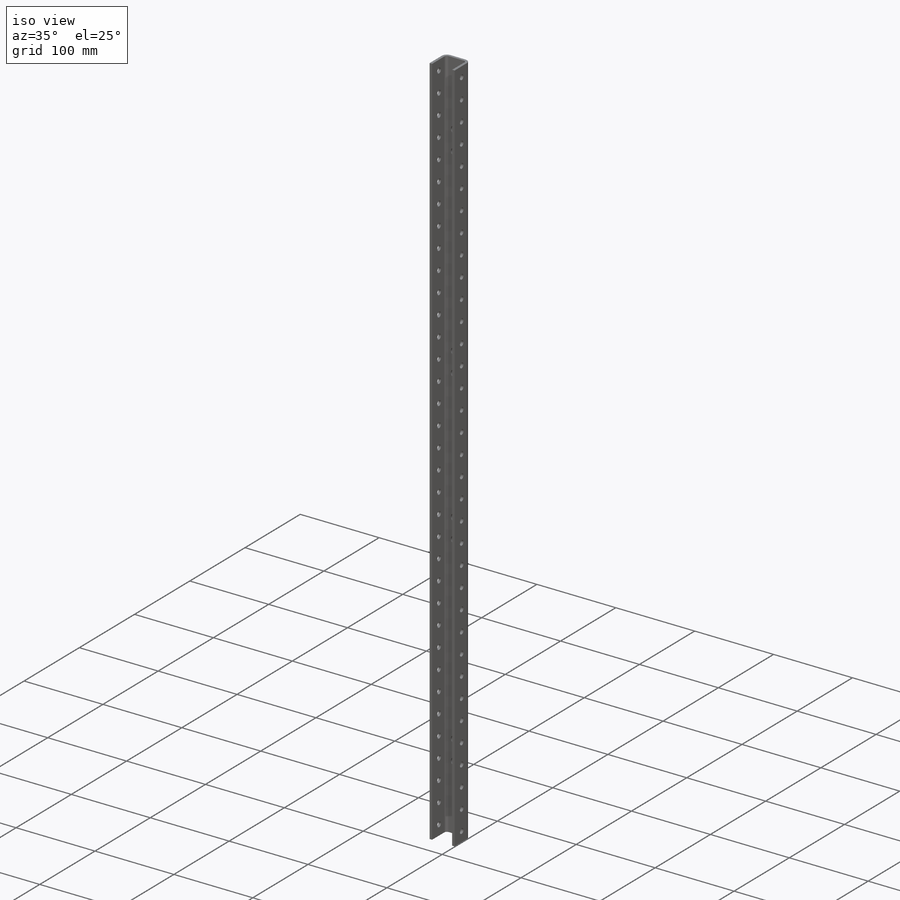
[diagram: iso view]
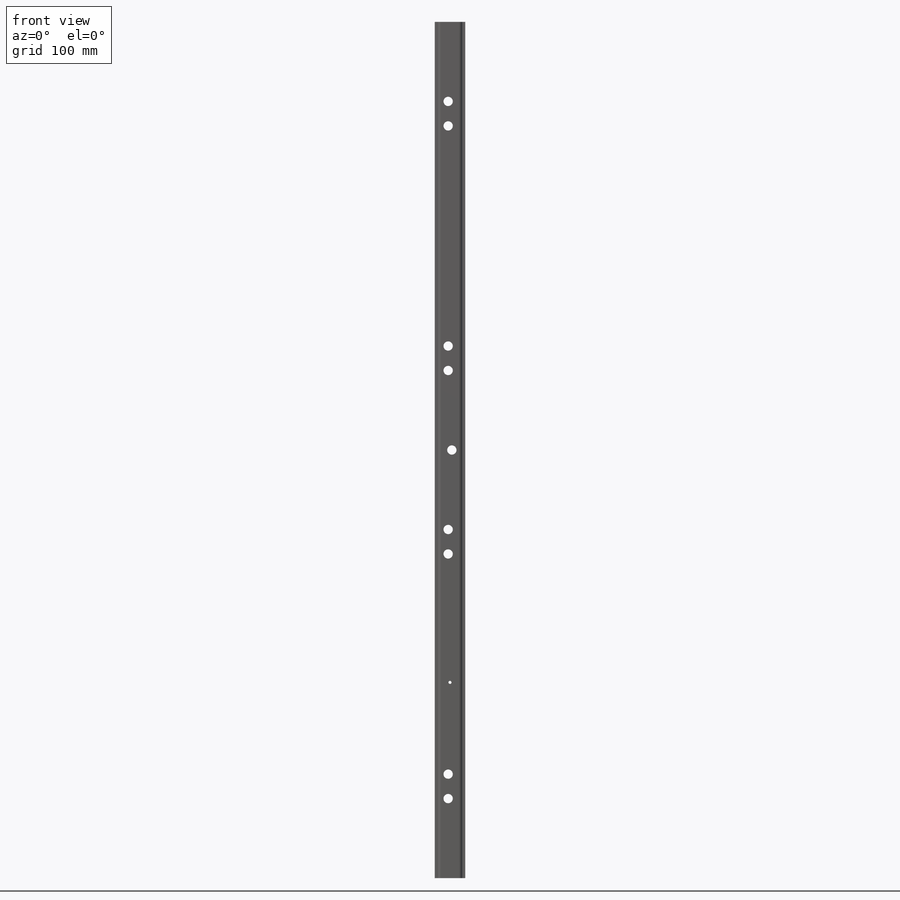
[diagram: front view]
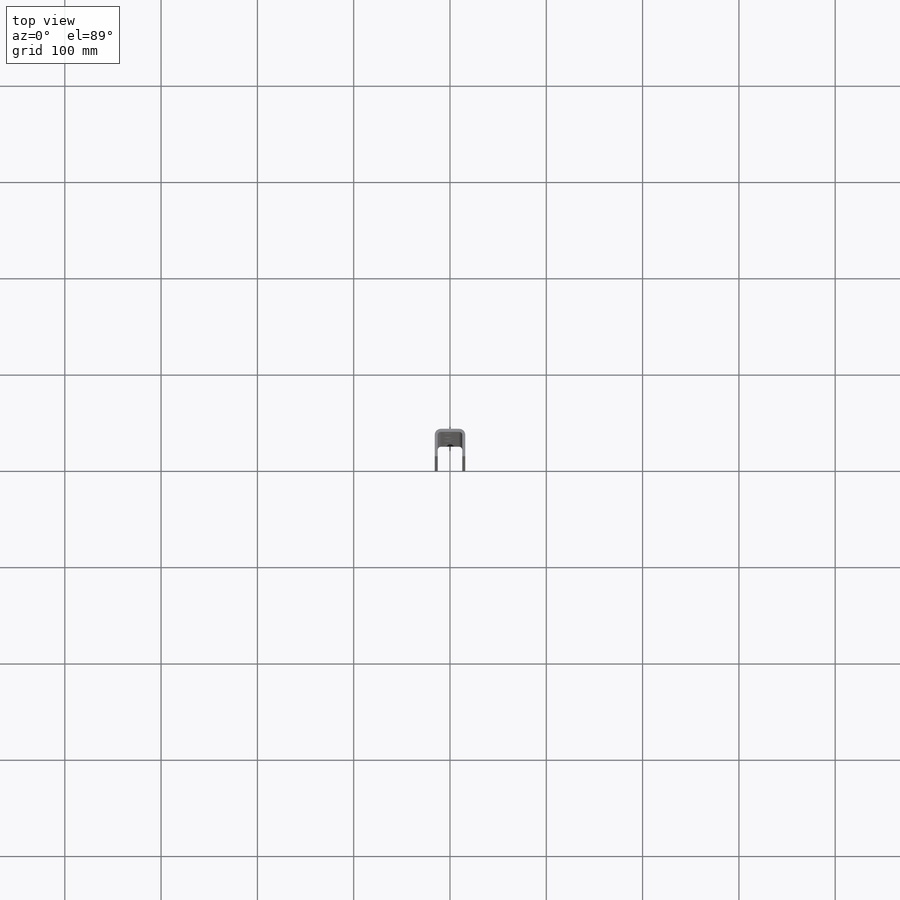
[diagram: top view]
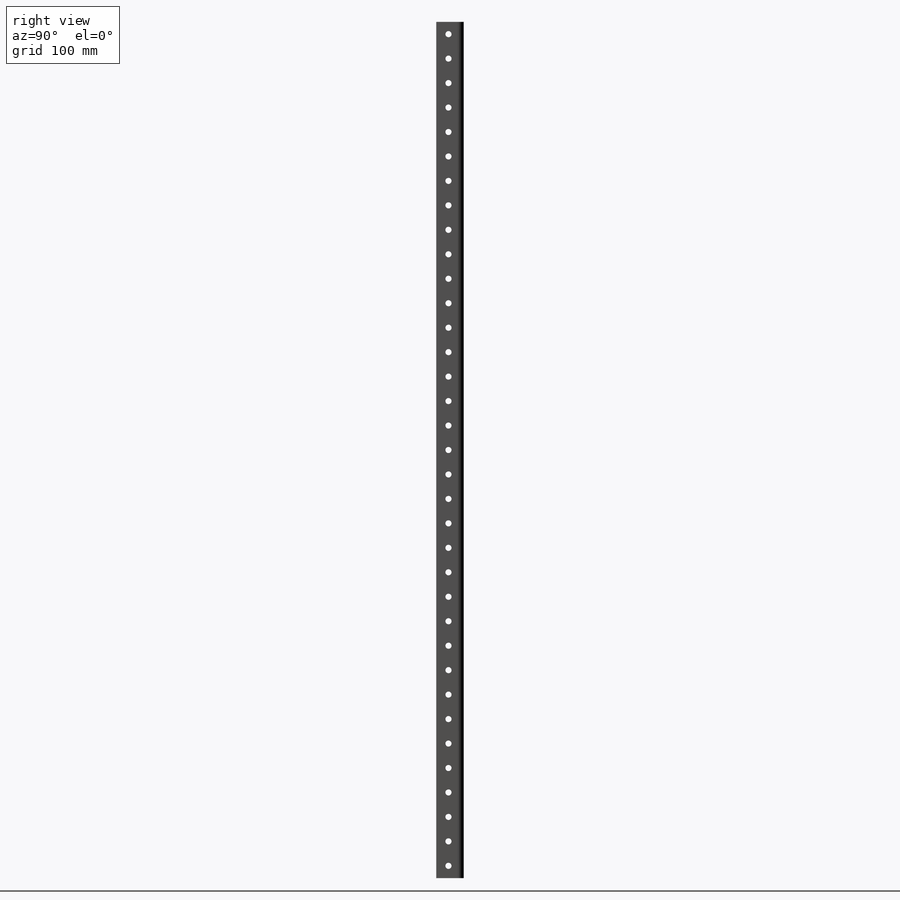
[diagram: right view]
SOLIDWORKS PART (.sldprt)
format: sldprt  version: not decoded by parser v0  size: 538,624 bytes
history: native  units: mm
features: sketch x3, cut_extrude x2, material x1, plane x1, extrude x1 (+10 scaffold rows collapsed)
feature tree (18):
  scaffold x10  (default folders/planes/origin — collapsed)
  material  "5052-O"
  plane  "Rithe Plane"
  sketch  "Sketch1"  dims[D5=3.175mm D6=6.35mm D1=31.75mm D2=25.4mm D3=28.575mm D4=25.4mm]
  extrude  "Extrude1"  Depth=889mm
  sketch  "Sketch2"  dims[c1.D1=3.18mm c1.D2=9.65mm c1.D6=9.652mm c1.D11=9.652mm c1.D14=9.652mm c2.D2=3.175mm c2.D3=1.905mm c2.D4=82.55mm c2.D5=25.4mm c2.D7=25.4mm c2.D8=254.0mm c2.D9=1.905mm c2.D10=444.5mm c2.D11=~928.027285mm c2.D12=82.55mm c2.D13=25.4mm c2.D15=25.4mm c2.D16=228.6mm c2.D17=~88.652948mm c3.D10=444.5mm c3.D14=95.25mm c3.D9=1.905mm c3.D3=1.905mm]
  cut_extrude  "Extrude2"  Depth=25mm
  sketch  "Sketch3"  dims[c1.D1=6.35mm c1.D2=12.7mm c1.D3=15.88mm c1.D4=25.4mm c2.D3=15.875mm]
  cut_extrude  "Extrude3"  Depth=35mm
decode coverage: 6 of 6 modeling features carry decoded parameters
note: ~ marks probable driven/reference dimensions
note: suppression state not decoded; provenance and decode notes live in map.json
